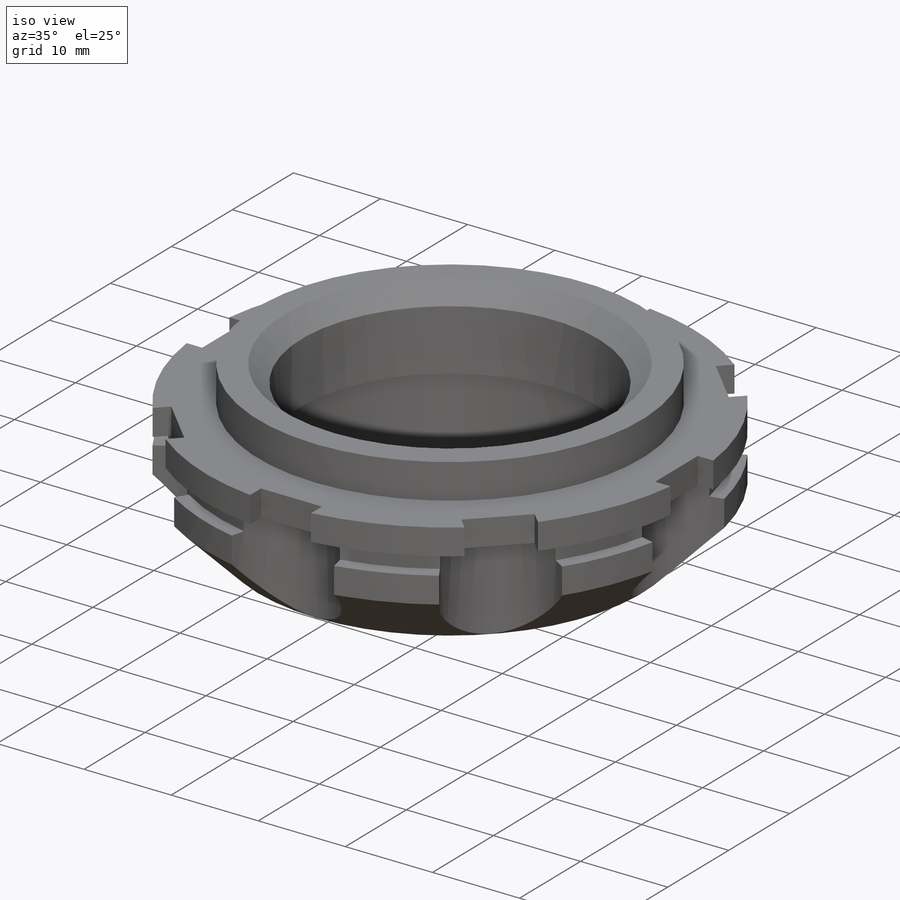
[diagram: iso view]
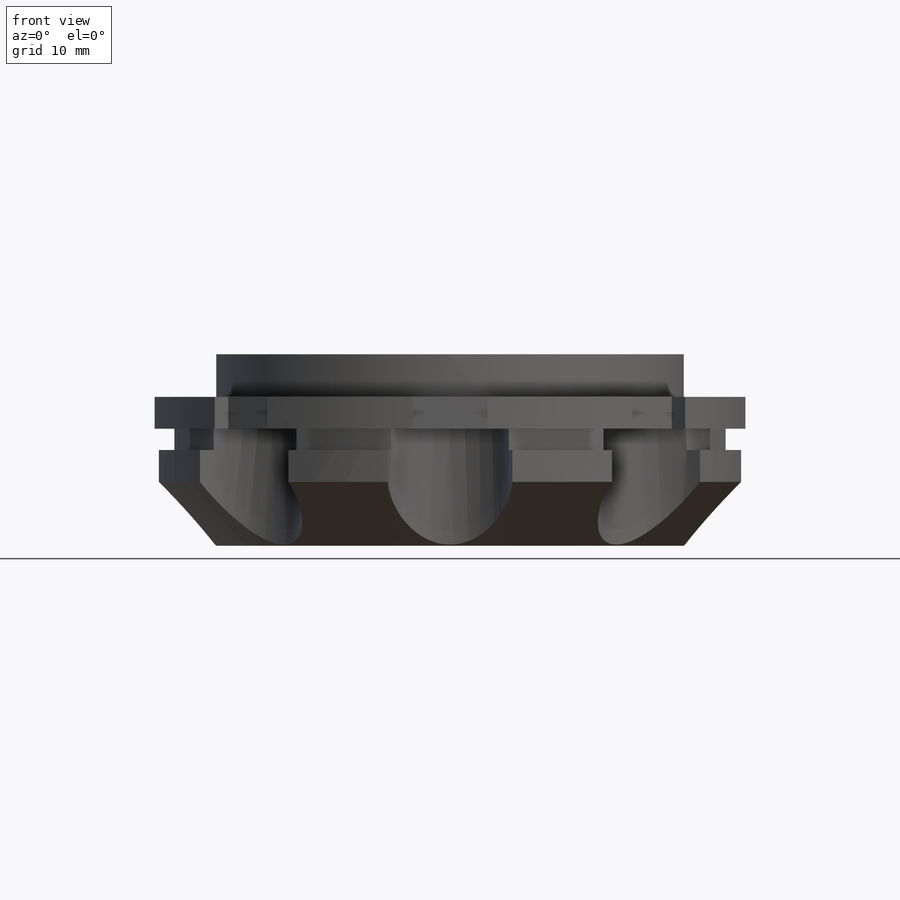
[diagram: front view]
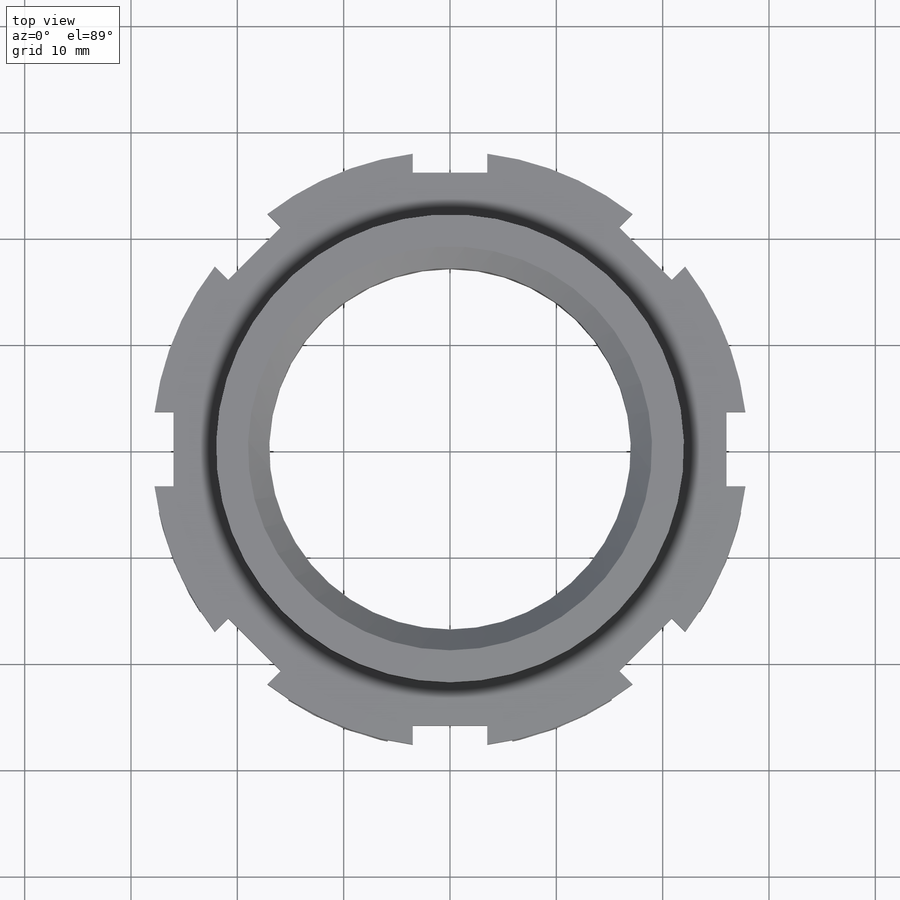
[diagram: top view]
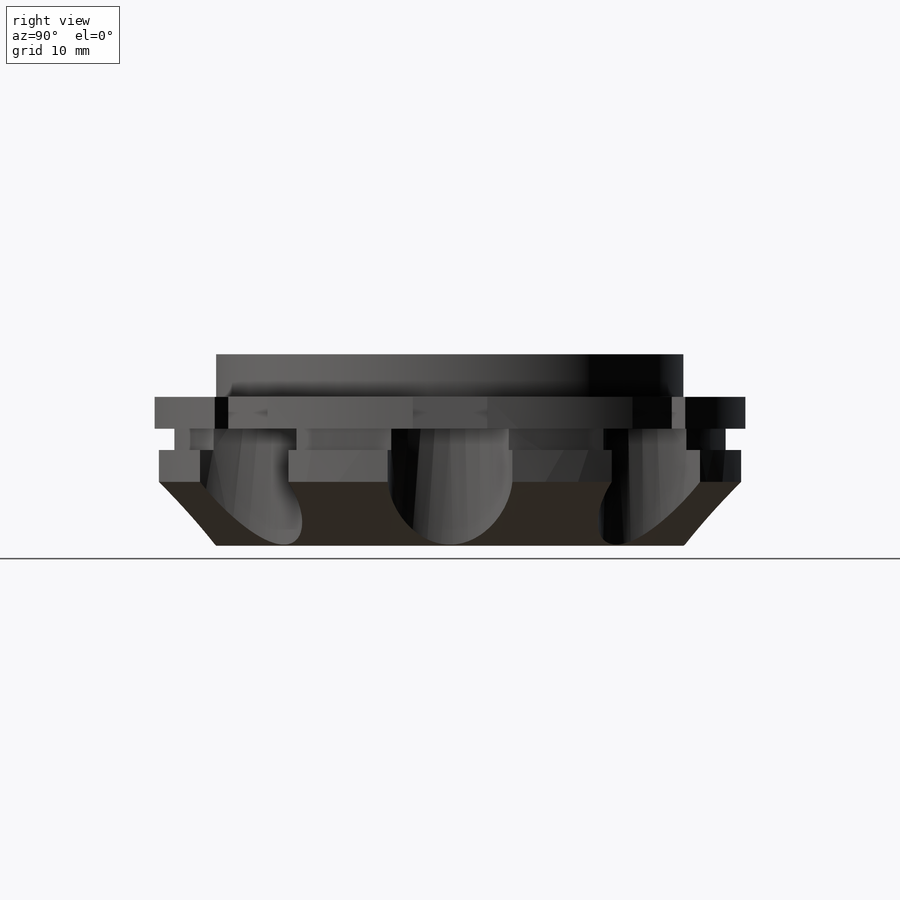
[diagram: right view]
SOLIDWORKS PART (.sldprt)
format: sldprt  version: not decoded by parser v0  size: 274,432 bytes
history: native  units: mm
features: sketch x6, cut_extrude x4, chamfer x2, material x1, extrude x1, cut_revolve x1 (+12 scaffold rows collapsed)
feature tree (27):
  scaffold x12  (default folders/planes/origin — collapsed)
  material  "Material <not specified>"
  sketch  "Sketch1"  dims[D1=~20.942991mm]
  extrude  "Boss-Extrude1"  Depth=18mm
  sketch  "Sketch2"  dims[D1=~20.676485mm]
  cut_extrude  "Cut-Extrude1"  Depth=4mm
  chamfer  "Chamfer1"  Distance=6mm Angle=45deg
  sketch  "Sketch5"  dims[D1=3.0mm]
  cut_revolve  "Cut-Revolve1"  Angle=360deg
  sketch  "Sketch6"  dims[c1.D1=5.95mm c2.D1=8.0]
  cut_extrude  "Cut-Extrude2"  [1 undecoded]
  sketch  "Sketch7"  dims[c1.D1=4.0mm c2.D1=8.0]
  cut_extrude  "Cut-Extrude3"  [1 undecoded]
  chamfer  "Chamfer2"  Distance=2mm Angle=45deg
  sketch  "Sketch9"  dims[D1=21.0mm]
  cut_extrude  "Cut-Extrude4"  Depth=9mm
decode coverage: 12 of 14 modeling features carry decoded parameters
note: ~ marks probable driven/reference dimensions
note: 2 parameter values undecoded
note: suppression state not decoded; provenance and decode notes live in map.json
